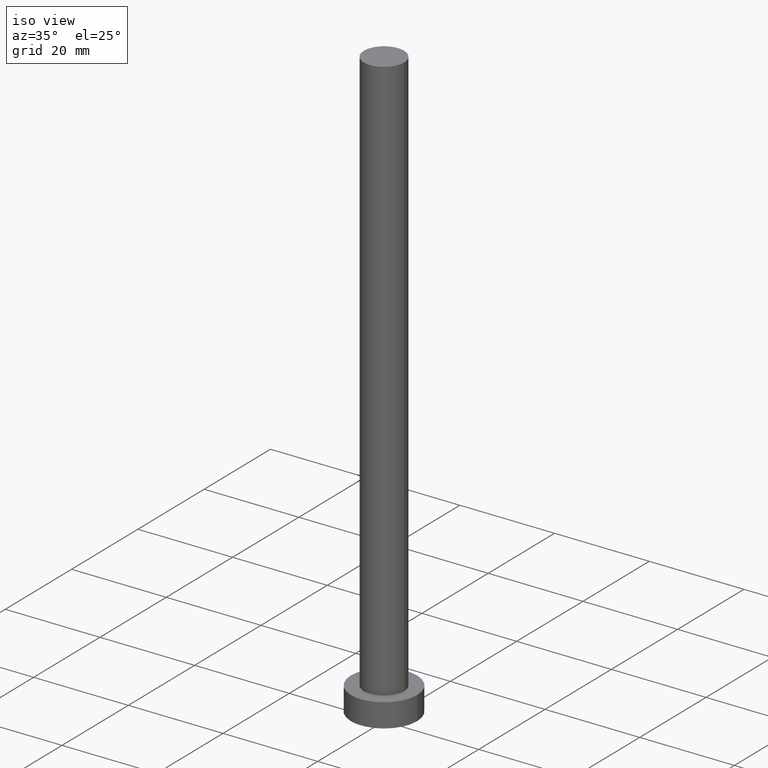
[diagram: clean part render]
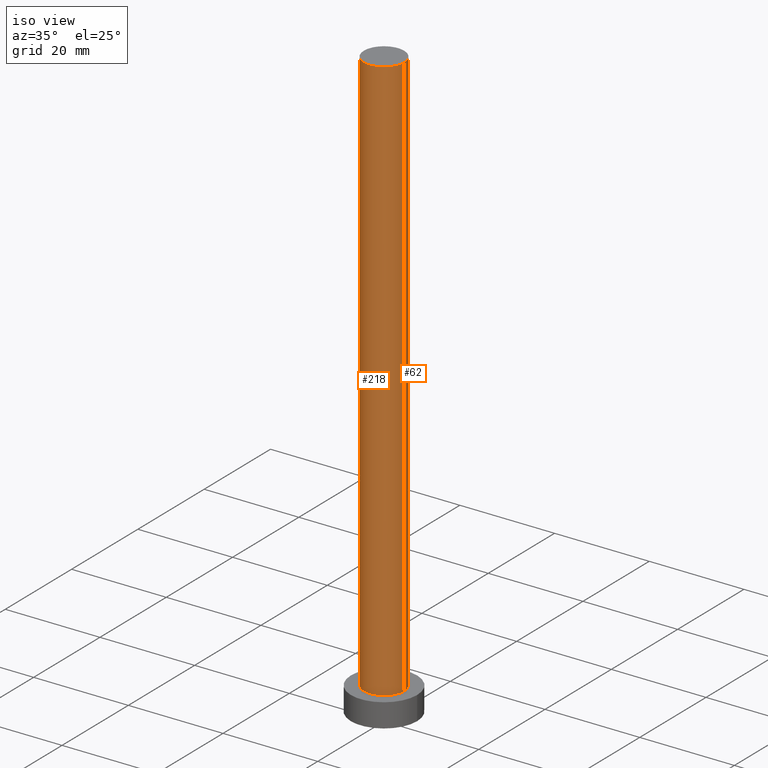
[diagram: same view with one multi-face feature highlighted, each face labeled with its STEP entity id]
A machine part, iso view. The highlighted faces form ONE feature: a constant-radius fillet chain: 2 tangent blend faces with common blend radius 4.25 mm. The faces share edges in the B-rep.
Their STEP definitions:
[1] entity #218 (Cylinder):
#4 = DIRECTION ( 'NONE',  ( -0.000000000000000000, -0.000000000000000000, -1.000000000000000000 ) ) ;
#22 = DIRECTION ( 'NONE',  ( 0.000000000000000000, 0.000000000000000000, 1.000000000000000000 ) ) ;
#33 = AXIS2_PLACEMENT_3D ( 'NONE', #142, #121, #63 ) ;
#35 = VERTEX_POINT ( 'NONE', #98 ) ;
#37 = ORIENTED_EDGE ( 'NONE', *, *, #170, .F. ) ;
#39 = VERTEX_POINT ( 'NONE', #234 ) ;
#43 = LINE ( 'NONE', #45, #55 ) ;
#45 = CARTESIAN_POINT ( 'NONE',  ( -4.250000000000000000, 0.000000000000000000, 125.0000000000000000 ) ) ;
#46 = CARTESIAN_POINT ( 'NONE',  ( 0.000000000000000000, 0.000000000000000000, 5.000000000000000000 ) ) ;
#55 = VECTOR ( 'NONE', #241, 1000.000000000000000 ) ;
#60 = DIRECTION ( 'NONE',  ( 1.000000000000000000, 0.000000000000000000, 0.000000000000000000 ) ) ;
#63 = DIRECTION ( 'NONE',  ( 1.000000000000000000, 0.000000000000000000, 0.000000000000000000 ) ) ;
#64 = FACE_OUTER_BOUND ( 'NONE', #94, .T. ) ;
#66 = VECTOR ( 'NONE', #221, 1000.000000000000000 ) ;
#77 = CIRCLE ( 'NONE', #89, 4.250000000000000000 ) ;
#89 = AXIS2_PLACEMENT_3D ( 'NONE', #46, #22, #60 ) ;
#94 = EDGE_LOOP ( 'NONE', ( #113, #37, #219, #136 ) ) ;
#98 = CARTESIAN_POINT ( 'NONE',  ( 4.250000000000000000, 5.204748896376250699E-16, 5.000000000000000000 ) ) ;
#113 = ORIENTED_EDGE ( 'NONE', *, *, #152, .F. ) ;
#121 = DIRECTION ( 'NONE',  ( 0.000000000000000000, 0.000000000000000000, 1.000000000000000000 ) ) ;
#135 = VERTEX_POINT ( 'NONE', #242 ) ;
#136 = ORIENTED_EDGE ( 'NONE', *, *, #191, .T. ) ;
#142 = CARTESIAN_POINT ( 'NONE',  ( 0.000000000000000000, 0.000000000000000000, 125.0000000000000000 ) ) ;
#152 = EDGE_CURVE ( 'NONE', #39, #35, #184, .T. ) ;
#160 = EDGE_CURVE ( 'NONE', #135, #215, #43, .T. ) ;
#162 = CARTESIAN_POINT ( 'NONE',  ( 0.000000000000000000, 0.000000000000000000, 125.0000000000000000 ) ) ;
#170 = EDGE_CURVE ( 'NONE', #135, #39, #244, .T. ) ;
#174 = AXIS2_PLACEMENT_3D ( 'NONE', #162, #4, #239 ) ;
#181 = CYLINDRICAL_SURFACE ( 'NONE', #174, 4.250000000000000000 ) ;
#184 = LINE ( 'NONE', #223, #66 ) ;
#191 = EDGE_CURVE ( 'NONE', #215, #35, #77, .T. ) ;
#215 = VERTEX_POINT ( 'NONE', #227 ) ;
#218 = ADVANCED_FACE ( 'NONE', ( #64 ), #181, .T. ) ;
#219 = ORIENTED_EDGE ( 'NONE', *, *, #160, .T. ) ;
#221 = DIRECTION ( 'NONE',  ( -0.000000000000000000, -0.000000000000000000, -1.000000000000000000 ) ) ;
#223 = CARTESIAN_POINT ( 'NONE',  ( 4.250000000000000000, 5.204748896376250699E-16, 125.0000000000000000 ) ) ;
#227 = CARTESIAN_POINT ( 'NONE',  ( -4.250000000000000000, 0.000000000000000000, 5.000000000000000000 ) ) ;
#234 = CARTESIAN_POINT ( 'NONE',  ( 4.250000000000000000, 5.204748896376250699E-16, 125.0000000000000000 ) ) ;
#239 = DIRECTION ( 'NONE',  ( -1.000000000000000000, 0.000000000000000000, 0.000000000000000000 ) ) ;
#241 = DIRECTION ( 'NONE',  ( -0.000000000000000000, -0.000000000000000000, -1.000000000000000000 ) ) ;
#242 = CARTESIAN_POINT ( 'NONE',  ( -4.250000000000000000, 0.000000000000000000, 125.0000000000000000 ) ) ;
#244 = CIRCLE ( 'NONE', #33, 4.250000000000000000 ) ;
[2] entity #62 (Cylinder):
#14 = FACE_OUTER_BOUND ( 'NONE', #119, .T. ) ;
#16 = ORIENTED_EDGE ( 'NONE', *, *, #59, .T. ) ;
#20 = ORIENTED_EDGE ( 'NONE', *, *, #40, .F. ) ;
#28 = CIRCLE ( 'NONE', #195, 4.250000000000000000 ) ;
#35 = VERTEX_POINT ( 'NONE', #98 ) ;
#39 = VERTEX_POINT ( 'NONE', #234 ) ;
#40 = EDGE_CURVE ( 'NONE', #39, #135, #28, .T. ) ;
#43 = LINE ( 'NONE', #45, #55 ) ;
#45 = CARTESIAN_POINT ( 'NONE',  ( -4.250000000000000000, 0.000000000000000000, 125.0000000000000000 ) ) ;
#54 = CARTESIAN_POINT ( 'NONE',  ( 0.000000000000000000, 0.000000000000000000, 5.000000000000000000 ) ) ;
#55 = VECTOR ( 'NONE', #241, 1000.000000000000000 ) ;
#59 = EDGE_CURVE ( 'NONE', #35, #215, #69, .T. ) ;
#62 = ADVANCED_FACE ( 'NONE', ( #14 ), #74, .T. ) ;
#66 = VECTOR ( 'NONE', #221, 1000.000000000000000 ) ;
#69 = CIRCLE ( 'NONE', #106, 4.250000000000000000 ) ;
#74 = CYLINDRICAL_SURFACE ( 'NONE', #151, 4.250000000000000000 ) ;
#76 = DIRECTION ( 'NONE',  ( 0.000000000000000000, 0.000000000000000000, 1.000000000000000000 ) ) ;
#98 = CARTESIAN_POINT ( 'NONE',  ( 4.250000000000000000, 5.204748896376250699E-16, 5.000000000000000000 ) ) ;
#106 = AXIS2_PLACEMENT_3D ( 'NONE', #54, #76, #194 ) ;
#119 = EDGE_LOOP ( 'NONE', ( #20, #175, #16, #196 ) ) ;
#133 = DIRECTION ( 'NONE',  ( 0.000000000000000000, 0.000000000000000000, 1.000000000000000000 ) ) ;
#135 = VERTEX_POINT ( 'NONE', #242 ) ;
#151 = AXIS2_PLACEMENT_3D ( 'NONE', #179, #197, #177 ) ;
#152 = EDGE_CURVE ( 'NONE', #39, #35, #184, .T. ) ;
#160 = EDGE_CURVE ( 'NONE', #135, #215, #43, .T. ) ;
#175 = ORIENTED_EDGE ( 'NONE', *, *, #152, .T. ) ;
#177 = DIRECTION ( 'NONE',  ( -1.000000000000000000, 0.000000000000000000, 0.000000000000000000 ) ) ;
#179 = CARTESIAN_POINT ( 'NONE',  ( 0.000000000000000000, 0.000000000000000000, 125.0000000000000000 ) ) ;
#184 = LINE ( 'NONE', #223, #66 ) ;
#194 = DIRECTION ( 'NONE',  ( 1.000000000000000000, 0.000000000000000000, 0.000000000000000000 ) ) ;
#195 = AXIS2_PLACEMENT_3D ( 'NONE', #254, #133, #236 ) ;
#196 = ORIENTED_EDGE ( 'NONE', *, *, #160, .F. ) ;
#197 = DIRECTION ( 'NONE',  ( -0.000000000000000000, -0.000000000000000000, -1.000000000000000000 ) ) ;
#215 = VERTEX_POINT ( 'NONE', #227 ) ;
#221 = DIRECTION ( 'NONE',  ( -0.000000000000000000, -0.000000000000000000, -1.000000000000000000 ) ) ;
#223 = CARTESIAN_POINT ( 'NONE',  ( 4.250000000000000000, 5.204748896376250699E-16, 125.0000000000000000 ) ) ;
#227 = CARTESIAN_POINT ( 'NONE',  ( -4.250000000000000000, 0.000000000000000000, 5.000000000000000000 ) ) ;
#234 = CARTESIAN_POINT ( 'NONE',  ( 4.250000000000000000, 5.204748896376250699E-16, 125.0000000000000000 ) ) ;
#236 = DIRECTION ( 'NONE',  ( 1.000000000000000000, 0.000000000000000000, 0.000000000000000000 ) ) ;
#241 = DIRECTION ( 'NONE',  ( -0.000000000000000000, -0.000000000000000000, -1.000000000000000000 ) ) ;
#242 = CARTESIAN_POINT ( 'NONE',  ( -4.250000000000000000, 0.000000000000000000, 125.0000000000000000 ) ) ;
#254 = CARTESIAN_POINT ( 'NONE',  ( 0.000000000000000000, 0.000000000000000000, 125.0000000000000000 ) ) ;